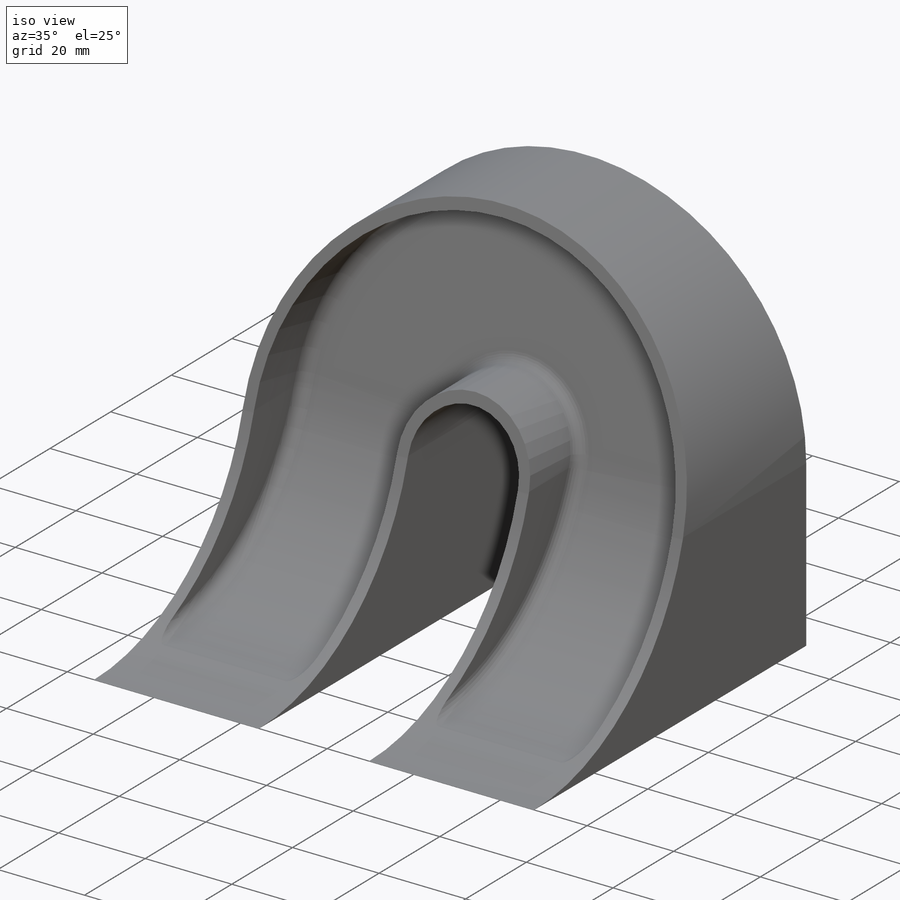
[diagram: iso view]
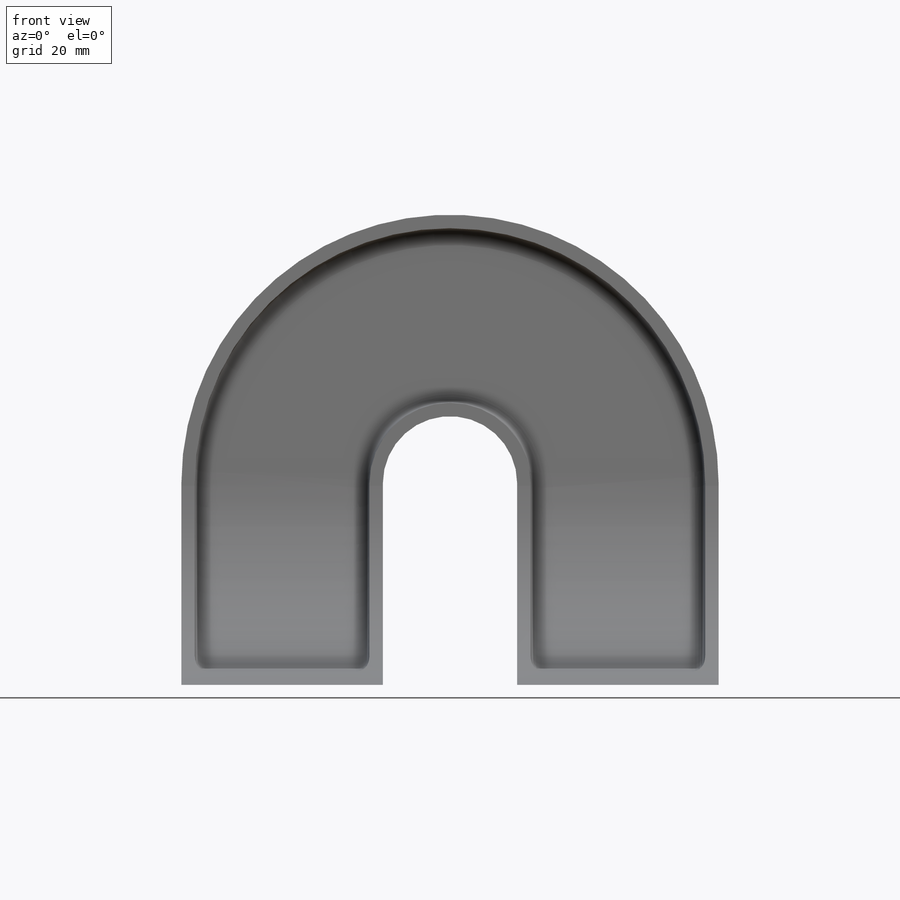
[diagram: front view]
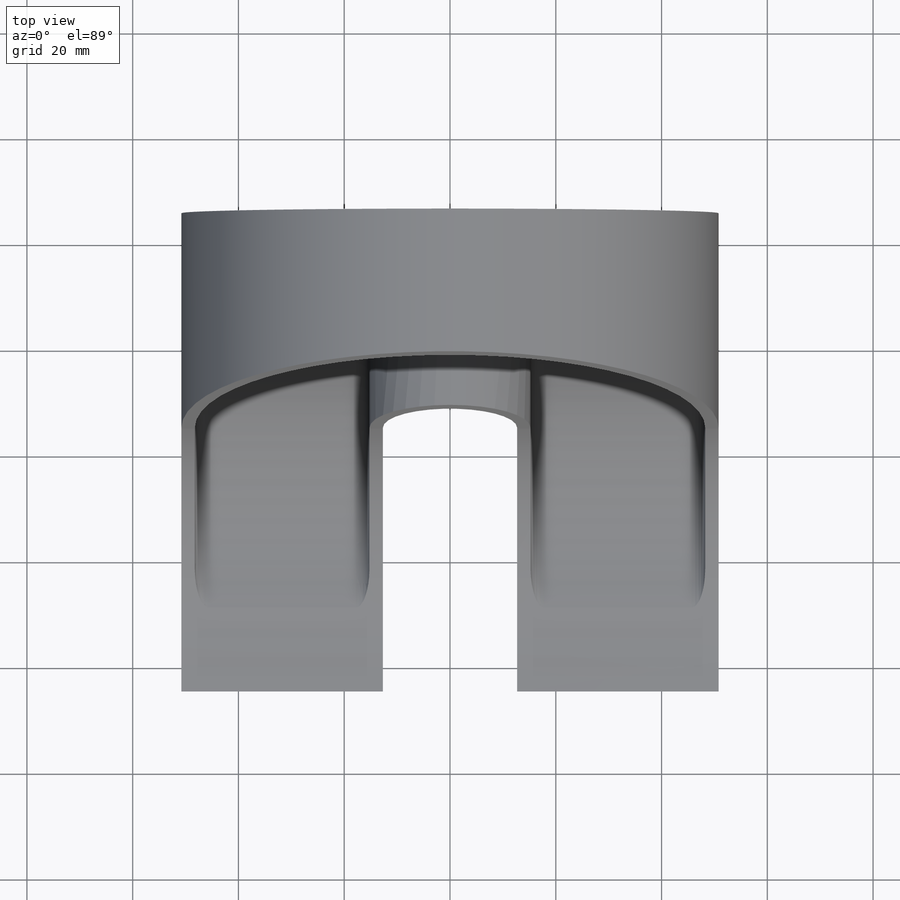
[diagram: top view]
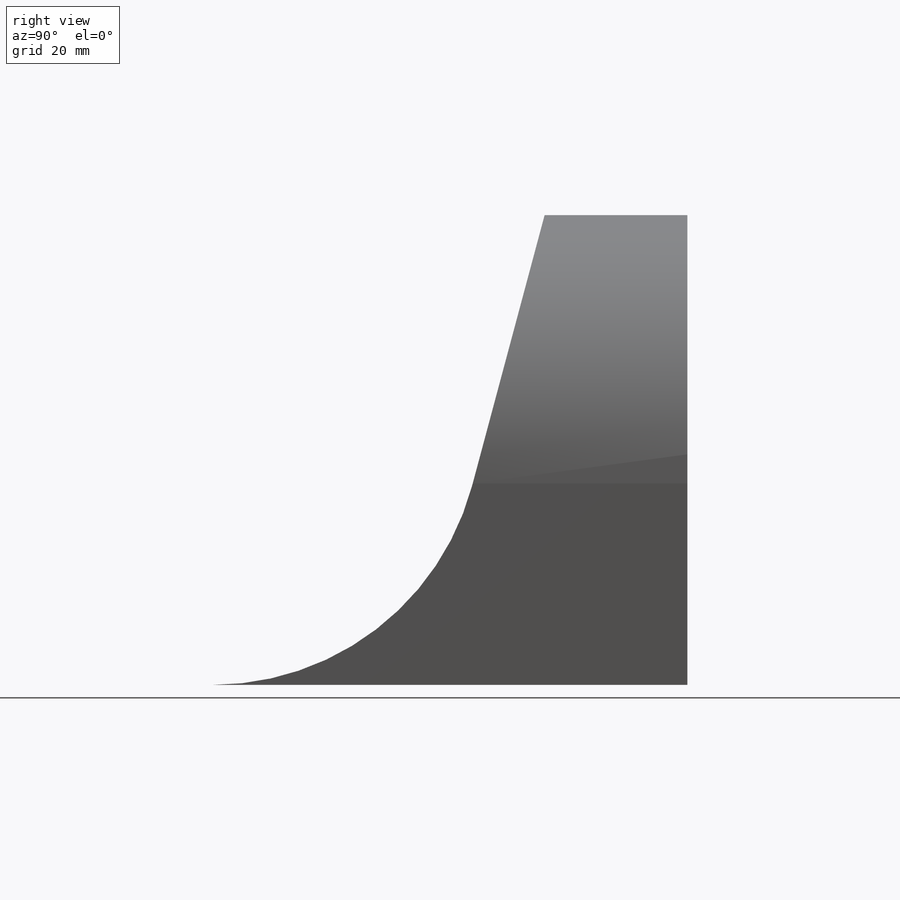
[diagram: right view]
SOLIDWORKS PART (.sldprt)
format: sldprt  version: not decoded by parser v0  size: 446,464 bytes
history: native  units: mm
features: sketch x5, extrude x3, fillet x3, shell x2, material x1, sweep x1, plane x1, mirror x1 (+13 scaffold rows collapsed)
feature tree (30):
  scaffold x13  (default folders/planes/origin — collapsed)
  material  "Material <not specified>"
  sketch  "Sketch1"  dims[c1.D1=63.5mm c1.D2=38.1mm c2.D1=~66.183055mm c2.D2=38.1mm]
  sketch  "Sketch2"  dims[c1.D1=~9.929013mm c1.D2=~21.577629mm c2.D1=38.1mm c2.D2=50.8mm]
  sweep  "Sweep1"
  plane  "Plane1"
  sketch  "Sketch3"  dims[D1=~47.412641mm]
  extrude  "Boss-Extrude1"  Depth=38.1mm
  mirror  "Mirror1"
  shell  "Shell1"  Thickness=2.54mm
  sketch  "Sketch4"  dims[D1=0.0mm]
  extrude  "Boss-Extrude2"  Depth=15.24mm
  fillet  "Fillet2"  Radius=50.8mm
  fillet  "Fillet5"  Radius=2.54mm
  shell  "Shell3"  Thickness=2.54mm
  sketch  "Sketch5"  dims[c1.D1=~34.174306mm c1.D2=~9.371742mm c2.D1=2.54mm]
  extrude  "Boss-Extrude3"  [1 undecoded]
  fillet  "Fillet3"  Radius=1.27mm
decode coverage: 12 of 15 modeling features carry decoded parameters
note: ~ marks probable driven/reference dimensions
note: 1 parameter value undecoded
note: suppression state not decoded; provenance and decode notes live in map.json
